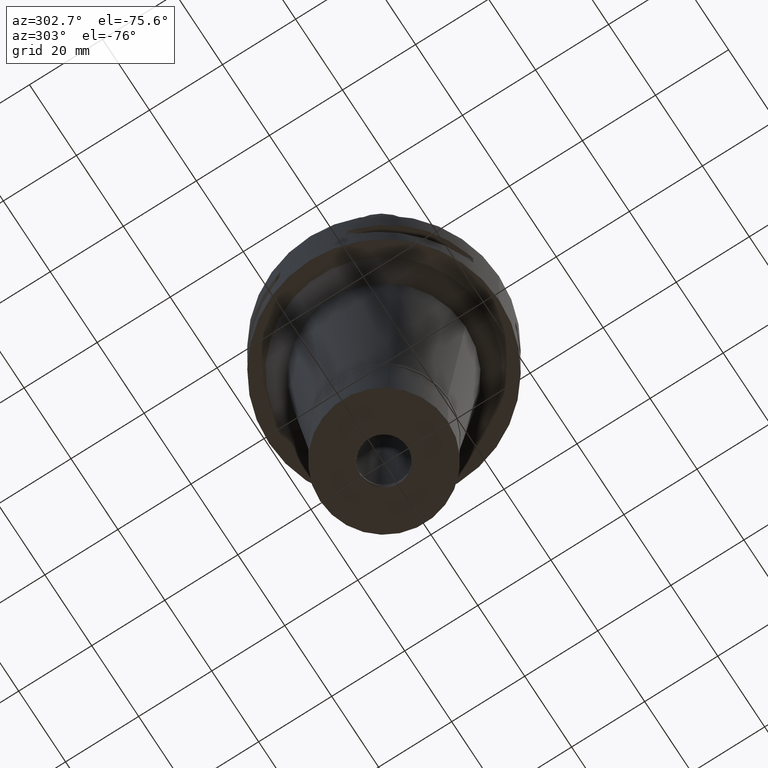
[diagram: clean part render]
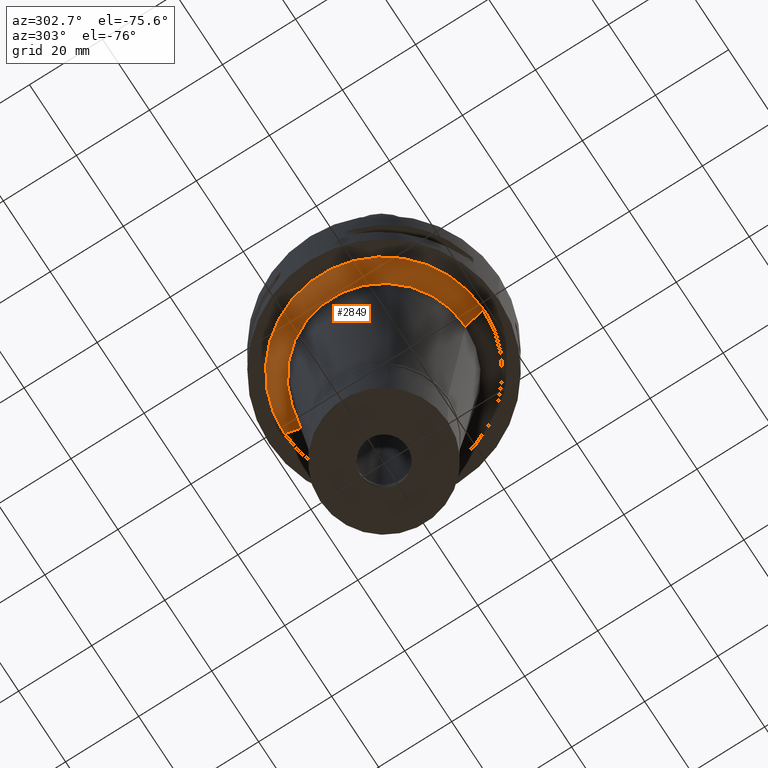
[diagram: same view with one face highlighted and labeled with its STEP entity id]
A machine part, auxiliary view. The second image highlights one B-rep face of the part: STEP entity #2849.
In plain terms, the highlighted conical surface has half-angle 45 deg.
Its self-contained STEP definition (entity closure, byte-faithful):
#252 = AXIS2_PLACEMENT_3D ( 'NONE', #2373, #1221, #2670 ) ;
#296 = CARTESIAN_POINT ( 'NONE',  ( 0.0000000000000000000, 0.0000000000000000000, -24.50000000000000000 ) ) ;
#383 = ORIENTED_EDGE ( 'NONE', *, *, #793, .F. ) ;
#793 = EDGE_CURVE ( 'NONE', #4704, #2730, #2033, .T. ) ;
#896 = DIRECTION ( 'NONE',  ( 0.0000000000000000000, 0.7071067811867980391, -0.7071067811862969954 ) ) ;
#942 = ORIENTED_EDGE ( 'NONE', *, *, #3549, .T. ) ;
#1221 = DIRECTION ( 'NONE',  ( 0.0000000000000000000, 0.0000000000000000000, -1.000000000000000000 ) ) ;
#1245 = VECTOR ( 'NONE', #896, 1000.000000000000000 ) ;
#1329 = EDGE_CURVE ( 'NONE', #3502, #2052, #1521, .T. ) ;
#1521 = LINE ( 'NONE', #4609, #1878 ) ;
#1560 = DIRECTION ( 'NONE',  ( 0.0000000000000000000, -1.000000000000000000, 0.0000000000000000000 ) ) ;
#1636 = CONICAL_SURFACE ( 'NONE', #4533, 24.78562989487000223, 0.7853981633972997312 ) ;
#1878 = VECTOR ( 'NONE', #4291, 1000.000000000000000 ) ;
#2033 = LINE ( 'NONE', #3917, #1245 ) ;
#2052 = VERTEX_POINT ( 'NONE', #4360 ) ;
#2281 = EDGE_LOOP ( 'NONE', ( #4369, #383, #942, #4026 ) ) ;
#2373 = CARTESIAN_POINT ( 'NONE',  ( 0.0000000000000000000, 0.0000000000000000000, -27.00000000000000000 ) ) ;
#2659 = CARTESIAN_POINT ( 'NONE',  ( 0.0000000000000000000, 0.0000000000000000000, -22.00000000000000000 ) ) ;
#2670 = DIRECTION ( 'NONE',  ( 0.0000000000000000000, -1.000000000000000000, 0.0000000000000000000 ) ) ;
#2730 = VERTEX_POINT ( 'NONE', #4378 ) ;
#2849 = ADVANCED_FACE ( 'NONE', ( #2968 ), #1636, .T. ) ;
#2968 = FACE_OUTER_BOUND ( 'NONE', #2281, .T. ) ;
#2983 = EDGE_CURVE ( 'NONE', #2730, #2052, #4619, .T. ) ;
#3002 = DIRECTION ( 'NONE',  ( 0.0000000000000000000, 1.000000000000000000, 0.0000000000000000000 ) ) ;
#3174 = AXIS2_PLACEMENT_3D ( 'NONE', #2659, #3483, #1560 ) ;
#3483 = DIRECTION ( 'NONE',  ( 0.0000000000000000000, 0.0000000000000000000, -1.000000000000000000 ) ) ;
#3502 = VERTEX_POINT ( 'NONE', #3893 ) ;
#3549 = EDGE_CURVE ( 'NONE', #4704, #3502, #3746, .T. ) ;
#3606 = CARTESIAN_POINT ( 'NONE',  ( 0.0000000000000000000, -27.28562989486999868, -22.00000000000000000 ) ) ;
#3746 = CIRCLE ( 'NONE', #3174, 27.28562989486999868 ) ;
#3893 = CARTESIAN_POINT ( 'NONE',  ( 0.0000000000000000000, 27.28562989486999868, -22.00000000000000000 ) ) ;
#3917 = CARTESIAN_POINT ( 'NONE',  ( 0.0000000000000000000, -27.28562989486999868, -22.00000000000000000 ) ) ;
#4026 = ORIENTED_EDGE ( 'NONE', *, *, #1329, .T. ) ;
#4291 = DIRECTION ( 'NONE',  ( 0.0000000000000000000, -0.7071067811867980391, -0.7071067811862969954 ) ) ;
#4360 = CARTESIAN_POINT ( 'NONE',  ( 0.0000000000000000000, 22.28562989487000223, -27.00000000000000000 ) ) ;
#4369 = ORIENTED_EDGE ( 'NONE', *, *, #2983, .F. ) ;
#4378 = CARTESIAN_POINT ( 'NONE',  ( 0.0000000000000000000, -22.28562989487000223, -27.00000000000000000 ) ) ;
#4533 = AXIS2_PLACEMENT_3D ( 'NONE', #296, #4548, #3002 ) ;
#4548 = DIRECTION ( 'NONE',  ( 0.0000000000000000000, 0.0000000000000000000, 1.000000000000000000 ) ) ;
#4609 = CARTESIAN_POINT ( 'NONE',  ( 0.0000000000000000000, 27.28562989486999868, -22.00000000000000000 ) ) ;
#4619 = CIRCLE ( 'NONE', #252, 22.28562989487000223 ) ;
#4704 = VERTEX_POINT ( 'NONE', #3606 ) ;